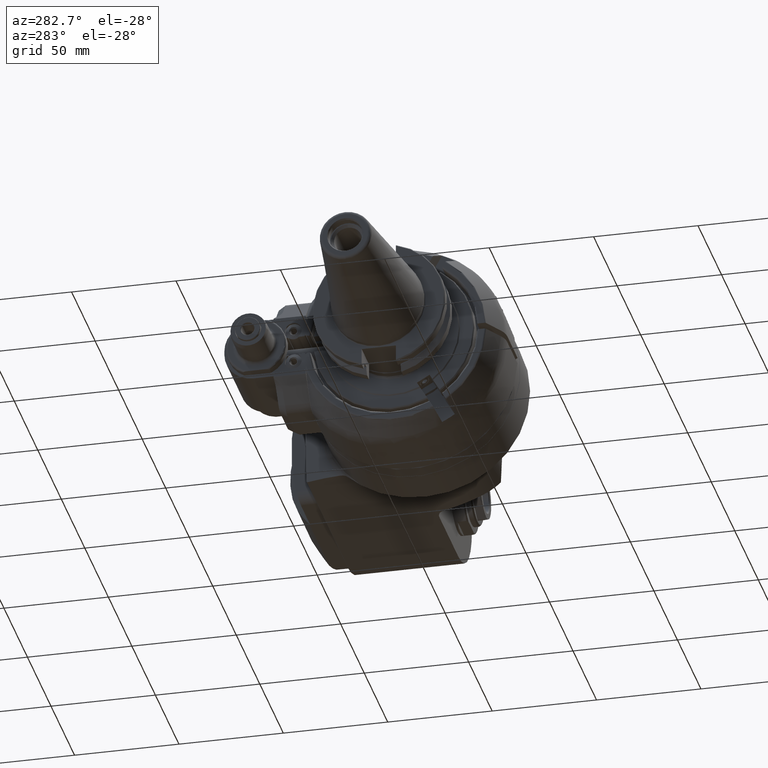
[diagram: clean part render]
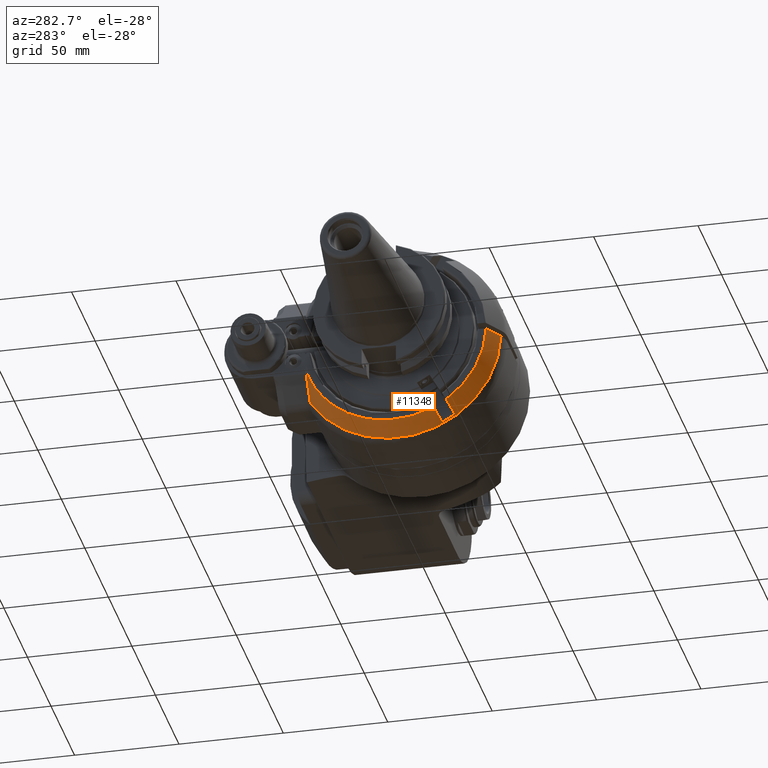
[diagram: same view with one face highlighted and labeled with its STEP entity id]
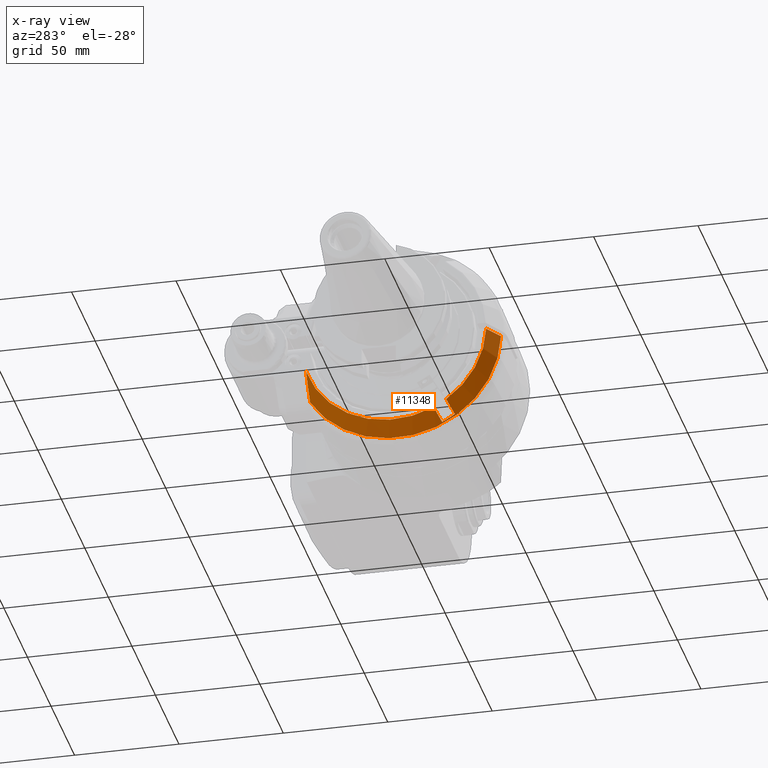
[diagram: x-ray of the same camera — body ghosted, the highlighted face saturated]
A machine part, auxiliary view. The second image highlights one B-rep face of the part: STEP entity #11348.
The next image is the same camera in x-ray: the body ghosted, the highlighted face saturated — about 0% of this face is hidden behind the body in this view.
In plain terms, the highlighted conical surface has half-angle 30 deg.
Its self-contained STEP definition (entity closure, byte-faithful):
#129=(
BOUNDED_CURVE()
B_SPLINE_CURVE(2,(#18009,#18010,#18011),.UNSPECIFIED.,.F.,.F.)
B_SPLINE_CURVE_WITH_KNOTS((3,3),(-2.34692632425289,-0.492536396799847),
 .UNSPECIFIED.)
CURVE()
GEOMETRIC_REPRESENTATION_ITEM()
RATIONAL_B_SPLINE_CURVE((1.0336401622138,1.03091361245284,1.01149371983583))
REPRESENTATION_ITEM('')
);
#266=B_SPLINE_CURVE_WITH_KNOTS('',3,(#18456,#18457,#18458,#18459,#18460,
#18461,#18462,#18463,#18464,#18465),.UNSPECIFIED.,.F.,.F.,(4,3,3,4),(0.,
0.3333333333333,0.6666666666667,0.999997768857294),.UNSPECIFIED.);
#269=B_SPLINE_CURVE_WITH_KNOTS('',3,(#18499,#18500,#18501,#18502,#18503,
#18504,#18505,#18506,#18507,#18508),.UNSPECIFIED.,.F.,.F.,(4,3,3,4),(1.43470621425353E-5,
0.3333333333333,0.6666666666667,1.),.UNSPECIFIED.);
#270=B_SPLINE_CURVE_WITH_KNOTS('',3,(#18512,#18513,#18514,#18515,#18516,
#18517,#18518,#18519,#18520,#18521),.UNSPECIFIED.,.F.,.F.,(4,3,3,4),(0.,
0.3333333333333,0.6666666666667,0.99998661906138),.UNSPECIFIED.);
#421=CONICAL_SURFACE('',#12291,46.84048999,0.523598775598299);
#1141=FACE_OUTER_BOUND('',#1887,.T.);
#1887=EDGE_LOOP('',(#8424,#8425,#8426,#8427,#8428,#8429,#8430,#8431));
#4237=CIRCLE('',#12290,49.39230484541);
#4238=CIRCLE('',#12292,44.28867513459);
#4239=CIRCLE('',#12293,48.90747728811);
#4240=CIRCLE('',#12294,44.28867513459);
#4975=VERTEX_POINT('',#17995);
#4976=VERTEX_POINT('',#18008);
#5051=VERTEX_POINT('',#18446);
#5052=VERTEX_POINT('',#18455);
#5056=VERTEX_POINT('',#18496);
#5057=VERTEX_POINT('',#18498);
#5058=VERTEX_POINT('',#18509);
#5059=VERTEX_POINT('',#18511);
#6210=EDGE_CURVE('',#4975,#4976,#129,.T.);
#6318=EDGE_CURVE('',#5052,#5051,#266,.T.);
#6325=EDGE_CURVE('',#5052,#4975,#4237,.T.);
#6326=EDGE_CURVE('',#5056,#5051,#4238,.T.);
#6327=EDGE_CURVE('',#5056,#5057,#269,.T.);
#6328=EDGE_CURVE('',#5058,#5057,#4239,.T.);
#6329=EDGE_CURVE('',#5058,#5059,#270,.T.);
#6330=EDGE_CURVE('',#4976,#5059,#4240,.T.);
#8424=ORIENTED_EDGE('',*,*,#6325,.F.);
#8425=ORIENTED_EDGE('',*,*,#6318,.T.);
#8426=ORIENTED_EDGE('',*,*,#6326,.F.);
#8427=ORIENTED_EDGE('',*,*,#6327,.T.);
#8428=ORIENTED_EDGE('',*,*,#6328,.F.);
#8429=ORIENTED_EDGE('',*,*,#6329,.T.);
#8430=ORIENTED_EDGE('',*,*,#6330,.F.);
#8431=ORIENTED_EDGE('',*,*,#6210,.F.);
#11348=ADVANCED_FACE('',(#1141),#421,.T.);
#12290=AXIS2_PLACEMENT_3D('',#18494,#14222,#14223);
#12291=AXIS2_PLACEMENT_3D('',#18495,#14224,#14225);
#12292=AXIS2_PLACEMENT_3D('',#18497,#14226,#14227);
#12293=AXIS2_PLACEMENT_3D('',#18510,#14228,#14229);
#12294=AXIS2_PLACEMENT_3D('',#18522,#14230,#14231);
#14222=DIRECTION('center_axis',(1.,0.,0.));
#14223=DIRECTION('ref_axis',(0.,-0.999538752412674,-0.0303691031364992));
#14224=DIRECTION('center_axis',(1.,0.,0.));
#14225=DIRECTION('ref_axis',(0.,-1.,0.));
#14226=DIRECTION('center_axis',(-1.,0.,0.));
#14227=DIRECTION('ref_axis',(0.,-0.566875606468697,-0.823803402997795));
#14228=DIRECTION('center_axis',(-1.,0.,0.));
#14229=DIRECTION('ref_axis',(0.,-0.436742034135616,-0.899586791598834));
#14230=DIRECTION('center_axis',(-1.,0.,0.));
#14231=DIRECTION('ref_axis',(0.,0.948323693864426,-0.317304540867809));
#17995=CARTESIAN_POINT('',(-156.16025403784,42.,-25.99230228246));
#18008=CARTESIAN_POINT('',(-165.,42.,-14.05299772923));
#18009=CARTESIAN_POINT('Ctrl Pts',(-156.160254037833,42.,-25.9923022824525));
#18010=CARTESIAN_POINT('Ctrl Pts',(-161.897889892266,42.,-19.6974303643633));
#18011=CARTESIAN_POINT('Ctrl Pts',(-164.999999999992,42.,-14.0529977292256));
#18446=CARTESIAN_POINT('',(-165.000000006576,-44.2632663160532,-1.5000000000986));
#18455=CARTESIAN_POINT('',(-156.160266197781,-49.3695157362103,-1.50000010664755));
#18456=CARTESIAN_POINT('Ctrl Pts',(-156.16027835559,-49.36950871544,-1.5));
#18457=CARTESIAN_POINT('Ctrl Pts',(-157.14243981185,-48.8021958626,-1.5));
#18458=CARTESIAN_POINT('Ctrl Pts',(-158.12464513406,-48.2348486363401,-1.5));
#18459=CARTESIAN_POINT('Ctrl Pts',(-159.106844813248,-47.6674946728002,
-1.5));
#18460=CARTESIAN_POINT('Ctrl Pts',(-160.089044492437,-47.1001407092601,
-1.5));
#18461=CARTESIAN_POINT('Ctrl Pts',(-161.071238528603,-46.53278000844,-1.5));
#18462=CARTESIAN_POINT('Ctrl Pts',(-162.053427801622,-45.9654109220473,
-1.5));
#18463=CARTESIAN_POINT('Ctrl Pts',(-163.035610500427,-45.3980456332991,
-1.5));
#18464=CARTESIAN_POINT('Ctrl Pts',(-164.017788436147,-44.8306719590907,
-1.5));
#18465=CARTESIAN_POINT('Ctrl Pts',(-165.0000000078,-44.2632663181729,-1.5));
#18494=CARTESIAN_POINT('Origin',(-156.16025403784,0.,0.));
#18495=CARTESIAN_POINT('Origin',(-160.58012701892,0.,0.));
#18496=CARTESIAN_POINT('',(-165.000000054855,-25.106169583369,-36.4851613012507));
#18497=CARTESIAN_POINT('Origin',(-165.,0.,0.));
#18498=CARTESIAN_POINT('',(-157.,-27.42212894174,-40.4965205788));
#18499=CARTESIAN_POINT('Ctrl Pts',(-165.000000093716,-25.1061696166642,
-36.4851613595043));
#18500=CARTESIAN_POINT('Ctrl Pts',(-164.111001818306,-25.3636064503954,
-36.9310550352662));
#18501=CARTESIAN_POINT('Ctrl Pts',(-163.222207073614,-25.6209557695952,
-37.3767971314136));
#18502=CARTESIAN_POINT('Ctrl Pts',(-162.333377615351,-25.8782900895712,
-37.8225132481432));
#18503=CARTESIAN_POINT('Ctrl Pts',(-161.444509899167,-26.1356354859985,
-38.2682485498491));
#18504=CARTESIAN_POINT('Ctrl Pts',(-160.555607466423,-26.3929658819105,
-38.7139578699006));
#18505=CARTESIAN_POINT('Ctrl Pts',(-159.666706804314,-26.6502729859213,
-39.1596268471957));
#18506=CARTESIAN_POINT('Ctrl Pts',(-158.777806142205,-26.9075800899321,
-39.6052958244907));
#18507=CARTESIAN_POINT('Ctrl Pts',(-157.88890725073,-27.1648639020415,-40.0509244590292));
#18508=CARTESIAN_POINT('Ctrl Pts',(-157.,-27.4221289417408,-40.4965205787996));
#18509=CARTESIAN_POINT('',(-157.,-21.35995111525,-43.9965205788));
#18510=CARTESIAN_POINT('Origin',(-157.,0.,0.));
#18511=CARTESIAN_POINT('',(-165.000000018111,-19.0439917665071,-39.985161316867));
#18512=CARTESIAN_POINT('Ctrl Pts',(-157.,-21.3599511152515,-43.9965205787991));
#18513=CARTESIAN_POINT('Ctrl Pts',(-157.88890725073,-21.1026860755522,-43.5509244590287));
#18514=CARTESIAN_POINT('Ctrl Pts',(-158.77780640122,-20.8454021881325,-43.105295694049));
#18515=CARTESIAN_POINT('Ctrl Pts',(-159.666706804315,-20.5880951594306,
-42.6596268471929));
#18516=CARTESIAN_POINT('Ctrl Pts',(-160.55560720741,-20.3307881307287,-42.2139580003366));
#18517=CARTESIAN_POINT('Ctrl Pts',(-161.44450886311,-20.0734579607446,-41.7682490716038));
#18518=CARTESIAN_POINT('Ctrl Pts',(-162.333377615353,-19.8161122630825,
-41.3225132481438));
#18519=CARTESIAN_POINT('Ctrl Pts',(-163.222210685901,-19.5587768960015,
-40.8767953177751));
#18520=CARTESIAN_POINT('Ctrl Pts',(-164.111010855632,-19.3014260024891,
-40.4310504948384));
#18521=CARTESIAN_POINT('Ctrl Pts',(-165.000000054332,-19.0439917970341,
-39.9851613713843));
#18522=CARTESIAN_POINT('Origin',(-165.,0.,0.));